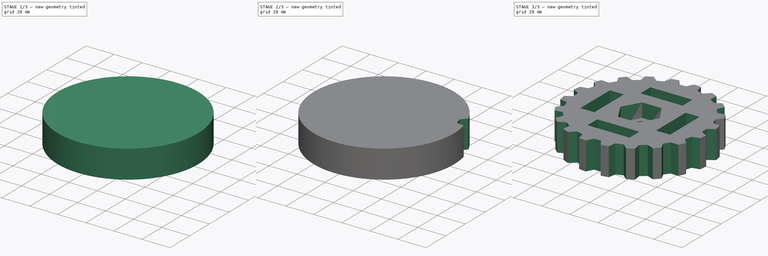
[diagram: build sequence overview — one tinted view per stage of 3, left to right]
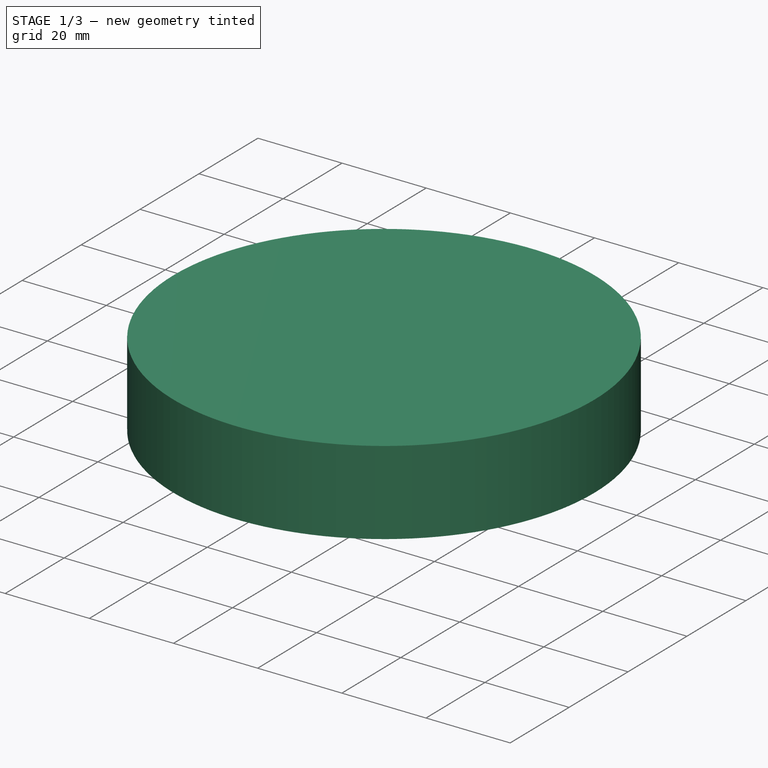
[diagram: stage 1 of 3 — iso view after this stage's code; geometry added in this stage tinted green]
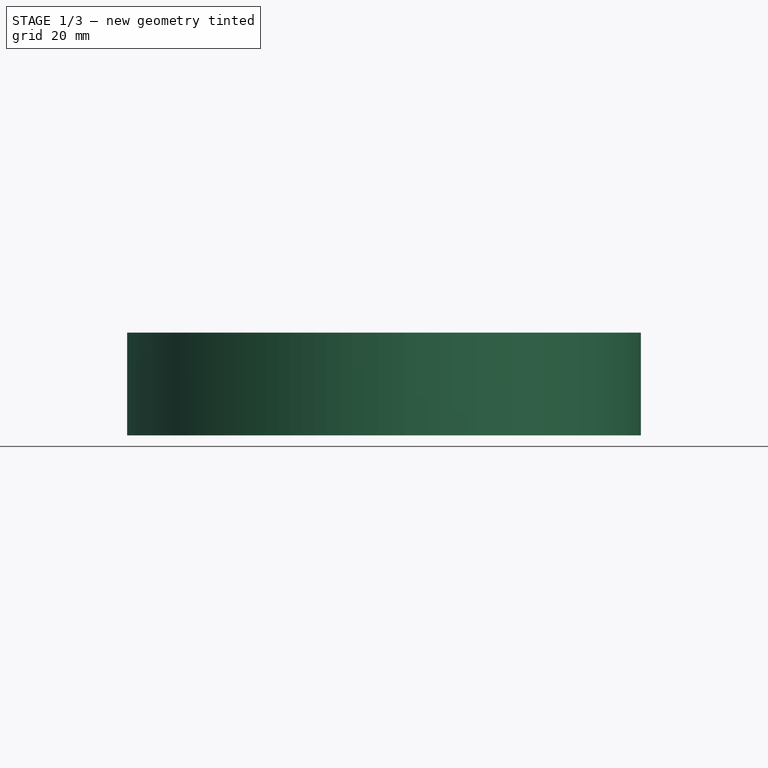
[diagram: stage 1 of 3 — front view after this stage's code; geometry added in this stage tinted green]
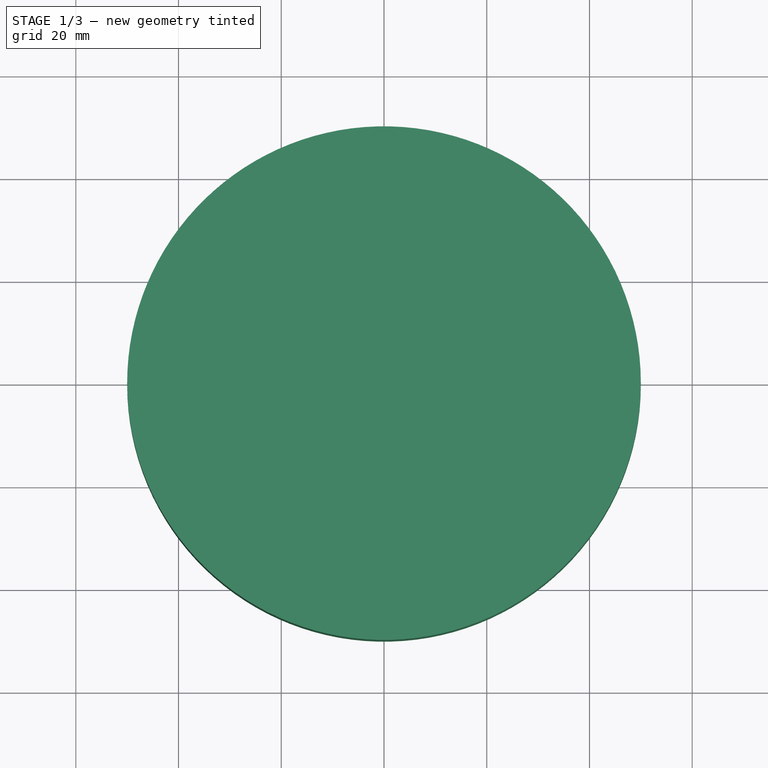
[diagram: stage 1 of 3 — top view after this stage's code; geometry added in this stage tinted green]
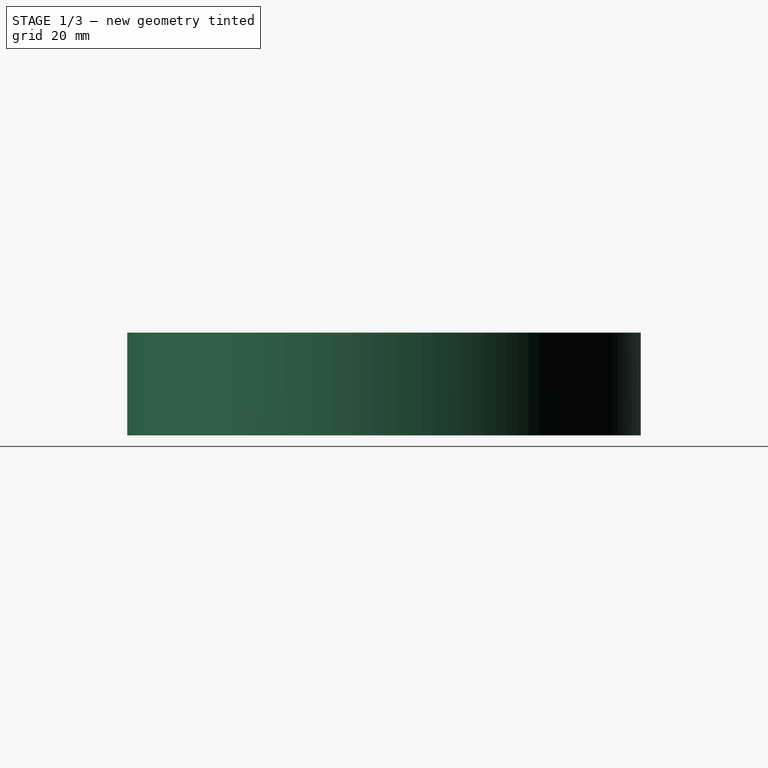
[diagram: stage 1 of 3 — right view after this stage's code; geometry added in this stage tinted green]
FCSTD DOCUMENT  (FreeCAD 0.15R4671 (Git))
Label: ServoGearBox
License: All rights reserved
LicenseURL: http://en.wikipedia.org/wiki/All_rights_reserved
objects: Sketcher::SketchObject×4, PartDesign::Pad×2, PartDesign::Pocket×2, PartDesign::PolarPattern×1
note: 13 computed .brp shape members not serialized (recipe doc carries the construction recipe); baked Part::Feature solids carry a one-line shape summary decoded from their .brp

FEATURE [Sketcher::SketchObject] Sketch  label="BaseSketch"
  sketch-geometry (1):
    g0: Circle CenterX=0 CenterY=0 CenterZ=0 NormalX=0 NormalY=0 NormalZ=1 Radius=50
  constraints (1):
    c: Radius(g0) = 50
FEATURE [PartDesign::Pad] Pad  label="Base"
  Length = 20
  Length2 = 100
  Sketch = -> Sketch
  Type = 0
FEATURE [Sketcher::SketchObject] Sketch004  label="NutBreakSketch"
  sketch-geometry (12):
    g0: LineSegment StartX=-5 StartY=8.66025 StartZ=0 EndX=5 EndY=8.66025 EndZ=0
    g1: LineSegment StartX=5 StartY=8.66025 StartZ=0 EndX=10 EndY=0 EndZ=0
    g2: LineSegment StartX=10 StartY=0 StartZ=0 EndX=5 EndY=-8.66025 EndZ=0
    g3: LineSegment StartX=5 StartY=-8.66025 StartZ=0 EndX=-5 EndY=-8.66025 EndZ=0
    g4: LineSegment StartX=-5 StartY=-8.66025 StartZ=0 EndX=-10 EndY=0 EndZ=0
    g5: LineSegment StartX=-10 StartY=0 StartZ=0 EndX=-5 EndY=8.66025 EndZ=0
    g6: LineSegment StartX=-7 StartY=12.1244 StartZ=0 EndX=7 EndY=12.1244 EndZ=0
    g7: LineSegment StartX=7 StartY=12.1244 StartZ=0 EndX=14 EndY=0 EndZ=0
    g8: LineSegment StartX=14 StartY=0 StartZ=0 EndX=7 EndY=-12.1244 EndZ=0
    g9: LineSegment StartX=7 StartY=-12.1244 StartZ=0 EndX=-7 EndY=-12.1244 EndZ=0
    g10: LineSegment StartX=-7 StartY=-12.1244 StartZ=0 EndX=-14 EndY=0 EndZ=0
    g11: LineSegment StartX=-14 StartY=0 StartZ=0 EndX=-7 EndY=12.1244 EndZ=0
  constraints (35):
    c: Coincident(g0,g1)
    c: Coincident(g1,g2)
    c: Coincident(g2,g3)
    c: Coincident(g3,g4)
    c: Coincident(g4,g5)
    c: Coincident(g5,g0)
    c: PointOnObject(g1,g-1)
    c: PointOnObject(g4,g-1)
    c: Symmetric(g4,g1,g-1)
    c: Equal(g4,g3)
    c: Equal(g3,g2)
    c: Equal(g2,g1)
    c: Equal(g1,g0)
    c: Equal(g0,g5)
    c: Angle(g5,g0) = 2.0944
    c: Parallel(g5,g2)
    c: Parallel(g3,g-1)
    c: DistanceX(g0) = 10
    c: Coincident(g6,g7)
    c: Coincident(g7,g8)
    c: Coincident(g8,g9)
    c: Horizontal(g9)
    c: Coincident(g9,g10)
    c: Coincident(g10,g11)
    c: Coincident(g11,g6)
    c: Horizontal(g6)
    c: Symmetric(g10,g7,g-1)
    c: PointOnObject(g7,g-1)
    c: Equal(g6,g7)
    c: Equal(g7,g8)
    c: Equal(g8,g9)
    c: Equal(g9,g10)
    c: Equal(g10,g11)
    c: Angle(g6,g7) = 2.0944
    c: DistanceX(g6) = 14
FEATURE [PartDesign::Pad] Pad001  label="NutBreak"
  Length = 10
  Length2 = 100
  Sketch = -> Sketch004
  Type = 0
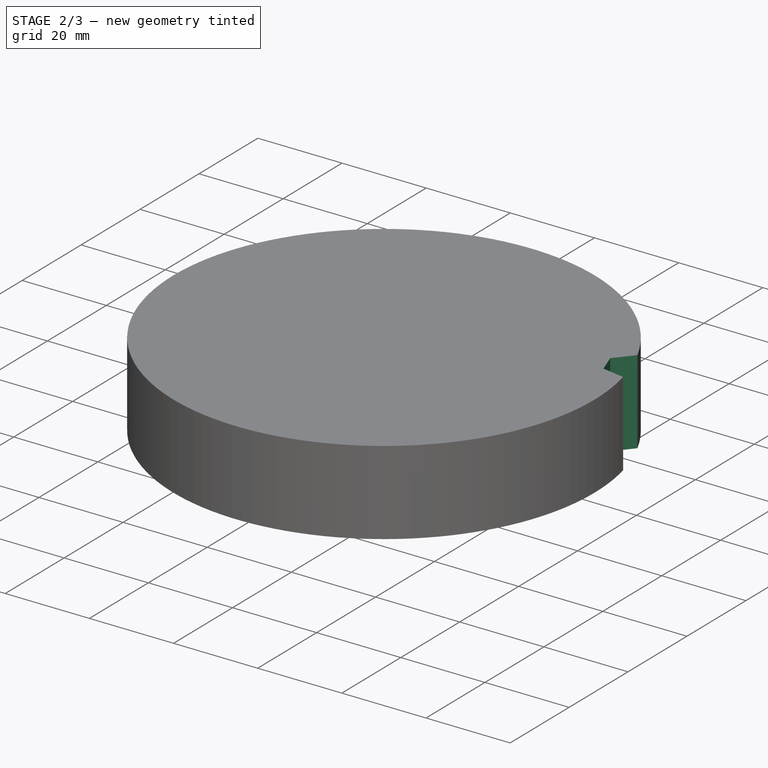
[diagram: stage 2 of 3 — iso view after this stage's code; geometry added in this stage tinted green]
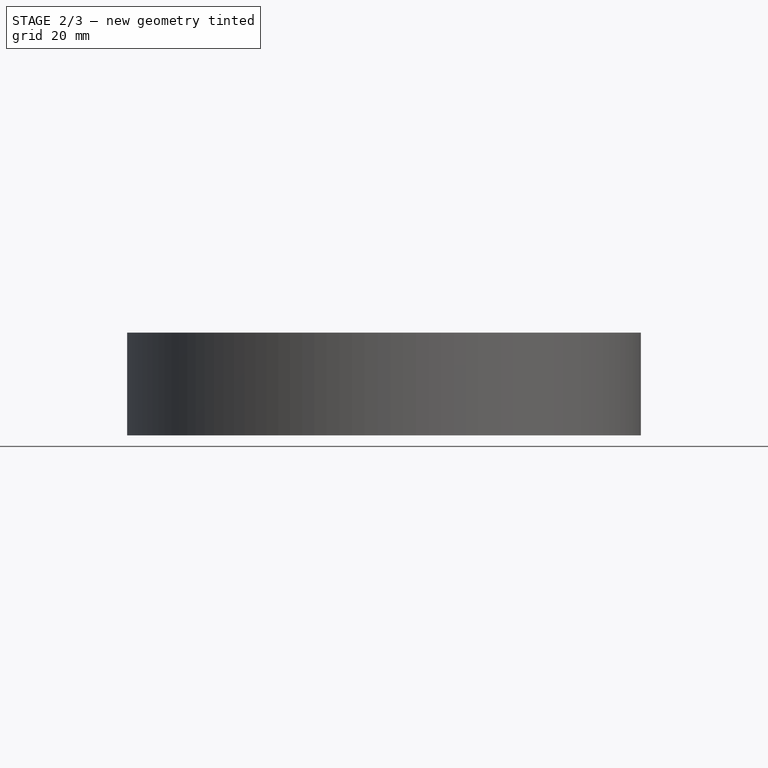
[diagram: stage 2 of 3 — front view after this stage's code; geometry added in this stage tinted green]
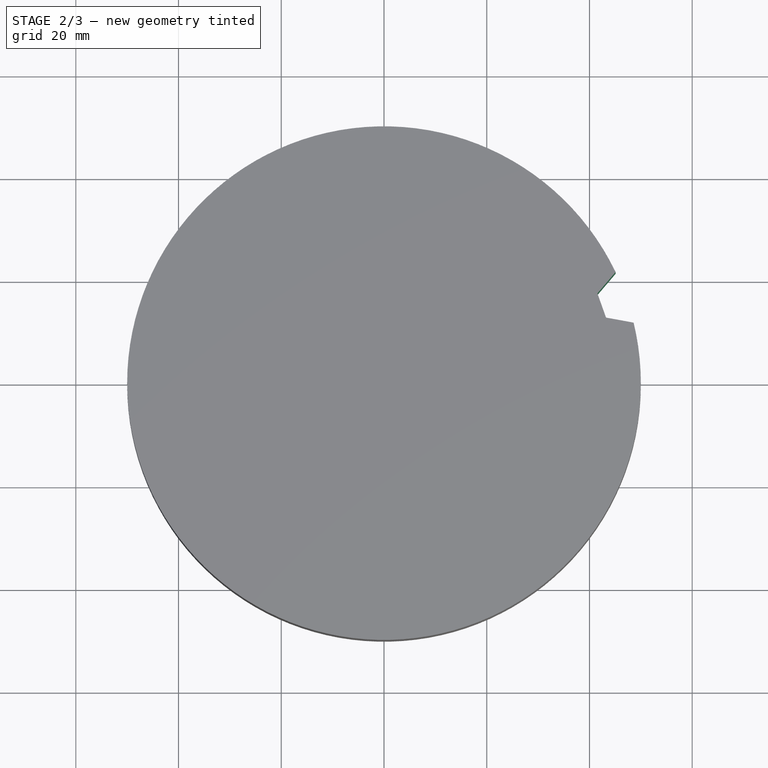
[diagram: stage 2 of 3 — top view after this stage's code; geometry added in this stage tinted green]
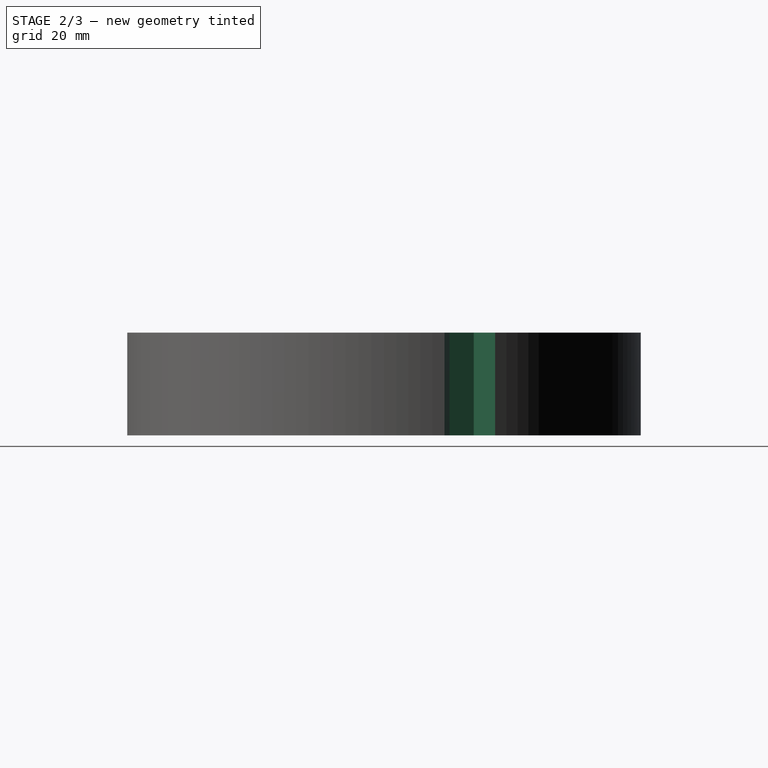
[diagram: stage 2 of 3 — right view after this stage's code; geometry added in this stage tinted green]
FEATURE [Sketcher::SketchObject] Sketch002  label="ToothSketch"
  Placement = pos=(0,0,20) rot=(0,0,1;0rad)
  Support = -> Pad [Face3]
  sketch-geometry (5):
    g0: ArcOfCircle CenterX=0 CenterY=0 CenterZ=0 NormalX=0 NormalY=0 NormalZ=1 Radius=50 StartAngle=0.237774 EndAngle=0.447297
    g1: LineSegment StartX=41.5461 StartY=17.4692 StartZ=0 EndX=43.2255 EndY=12.7597 EndZ=0
    g2: LineSegment StartX=45.081 StartY=21.6265 StartZ=0 EndX=41.5461 EndY=17.4692 EndZ=0
    g3: LineSegment StartX=48.5932 StartY=11.777 StartZ=0 EndX=43.2255 EndY=12.7597 EndZ=0
    g4: LineSegment [constr] StartX=0 StartY=0 StartZ=0 EndX=47.0953 EndY=16.7938 EndZ=0
  constraints (13):
    c: Coincident(g0,g-1)
    c: Coincident(g2,g0)
    c: Coincident(g2,g1)
    c: Coincident(g3,g0)
    c: Coincident(g3,g1)
    c: Angle(g3,g2) = 1.0472
    c: Coincident(g4,g-1)
    c: PointOnObject(g4,g0)
    c: Radius(g0) = 50
    c: Symmetric(g1,g1,g4)
    c: Distance(g1,g1) = 5
    c: Symmetric(g0,g0,g4)
    c: Distance(g4,g1) = 5
FEATURE [PartDesign::Pocket] Pocket  label="ToothPad"
  Length = 20
  Sketch = -> Sketch002
  Type = 0
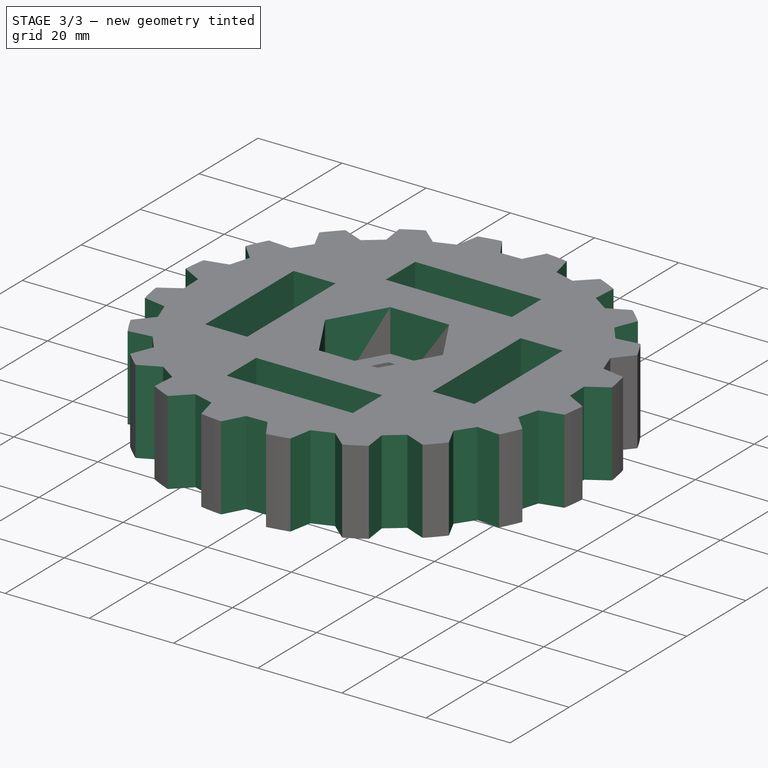
[diagram: stage 3 of 3 — iso view after this stage's code; geometry added in this stage tinted green]
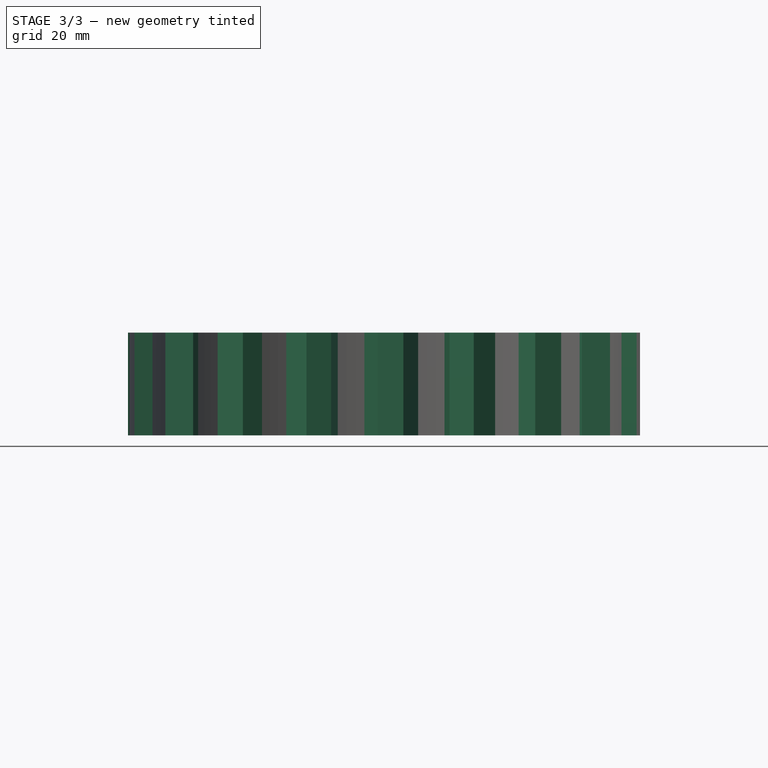
[diagram: stage 3 of 3 — front view after this stage's code; geometry added in this stage tinted green]
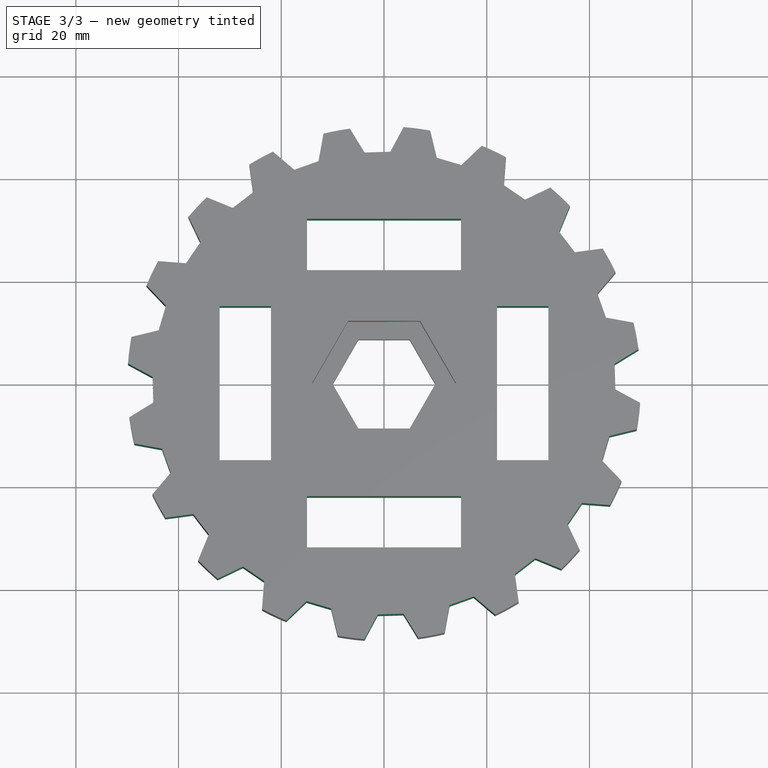
[diagram: stage 3 of 3 — top view after this stage's code; geometry added in this stage tinted green]
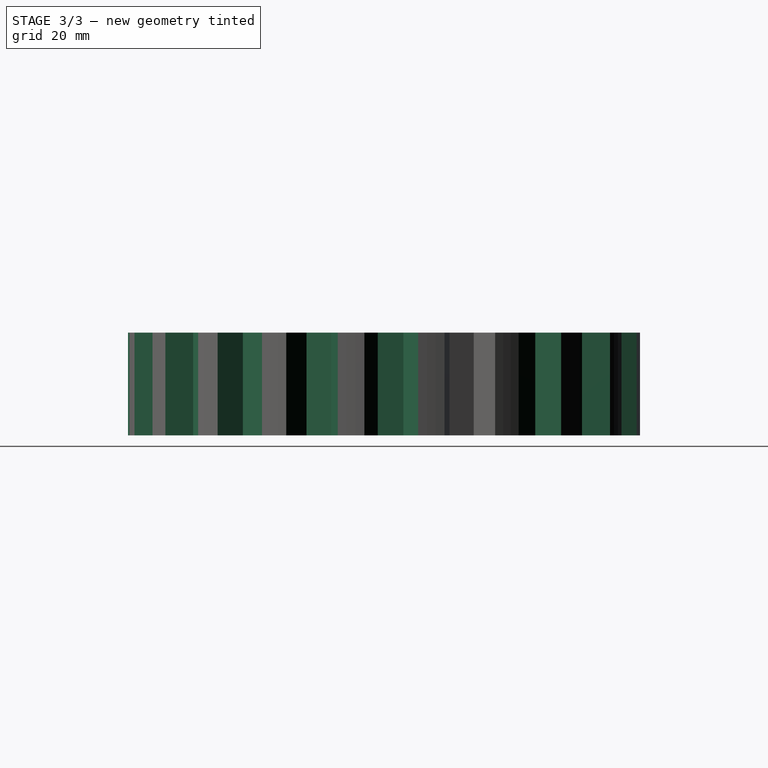
[diagram: stage 3 of 3 — right view after this stage's code; geometry added in this stage tinted green]
FEATURE [PartDesign::PolarPattern] PolarPattern  label="Teeth"
  Angle = 360
  Axis = -> Sketch002 [N_Axis]
  Occurrences = 20
  Originals = -> [Pocket]
FEATURE [Sketcher::SketchObject] Sketch003  label="NutSketch"
  Placement = pos=(0,0,20) rot=(0,0,1;0rad)
  Support = -> PolarPattern [Face4]
  sketch-geometry (22):
    g0: LineSegment StartX=-7 StartY=12.1244 StartZ=0 EndX=7 EndY=12.1244 EndZ=0
    g1: LineSegment StartX=7 StartY=12.1244 StartZ=0 EndX=14 EndY=0 EndZ=0
    g2: LineSegment StartX=14 StartY=0 StartZ=0 EndX=7 EndY=-12.1244 EndZ=0
    g3: LineSegment StartX=7 StartY=-12.1244 StartZ=0 EndX=-7 EndY=-12.1244 EndZ=0
    g4: LineSegment StartX=-7 StartY=-12.1244 StartZ=0 EndX=-14 EndY=0 EndZ=0
    g5: LineSegment StartX=-14 StartY=0 StartZ=0 EndX=-7 EndY=12.1244 EndZ=0
    g6: LineSegment StartX=-15 StartY=-22 StartZ=0 EndX=15 EndY=-22 EndZ=0
    g7: LineSegment StartX=15 StartY=-22 StartZ=0 EndX=15 EndY=-32 EndZ=0
    g8: LineSegment StartX=15 StartY=-32 StartZ=0 EndX=-15 EndY=-32 EndZ=0
    g9: LineSegment StartX=-15 StartY=-32 StartZ=0 EndX=-15 EndY=-22 EndZ=0
    g10: LineSegment StartX=-15 StartY=32 StartZ=0 EndX=15 EndY=32 EndZ=0
    g11: LineSegment StartX=15 StartY=32 StartZ=0 EndX=15 EndY=22 EndZ=0
    g12: LineSegment StartX=15 StartY=22 StartZ=0 EndX=-15 EndY=22 EndZ=0
    g13: LineSegment StartX=-15 StartY=22 StartZ=0 EndX=-15 EndY=32 EndZ=0
    g14: LineSegment StartX=-32 StartY=15 StartZ=0 EndX=-22 EndY=15 EndZ=0
    g15: LineSegment StartX=-22 StartY=15 StartZ=0 EndX=-22 EndY=-15 EndZ=0
    g16: LineSegment StartX=-22 StartY=-15 StartZ=0 EndX=-32 EndY=-15 EndZ=0
    g17: LineSegment StartX=-32 StartY=-15 StartZ=0 EndX=-32 EndY=15 EndZ=0
    g18: LineSegment StartX=22 StartY=15 StartZ=0 EndX=32 EndY=15 EndZ=0
    g19: LineSegment StartX=32 StartY=15 StartZ=0 EndX=32 EndY=-15 EndZ=0
    g20: LineSegment StartX=32 StartY=-15 StartZ=0 EndX=22 EndY=-15 EndZ=0
    g21: LineSegment StartX=22 StartY=-15 StartZ=0 EndX=22 EndY=15 EndZ=0
  constraints (66):
    c: Horizontal(g0)
    c: Coincident(g0,g1)
    c: PointOnObject(g1,g-1)
    c: Coincident(g1,g2)
    c: Coincident(g2,g3)
    c: Horizontal(g3)
    c: Coincident(g3,g4)
    c: PointOnObject(g4,g-1)
    c: Coincident(g4,g5)
    c: Coincident(g5,g0)
    c: Equal(g2,g1)
    c: Equal(g1,g0)
    c: Equal(g0,g5)
    c: Equal(g5,g4)
    c: Equal(g4,g3)
    c: Symmetric(g1,g4,g-1)
    c: Angle(g2,g3) = 2.0944
    c: DistanceX(g0) = 14
    c: Coincident(g6,g7)
    c: Coincident(g7,g8)
    c: Coincident(g8,g9)
    c: Coincident(g9,g6)
    c: Coincident(g10,g11)
    c: Coincident(g11,g12)
    c: Coincident(g12,g13)
    c: Coincident(g10,g13)
    c: Parallel(g11,g13)
    c: Parallel(g7,g9)
    c: Equal(g13,g11)
    c: Equal(g11,g9)
    c: Equal(g9,g7)
    c: Equal(g12,g10)
    c: Distance(g7) = 10
    c: Distance(g8) = 30
    c: Angle(g11,g12) = 1.5708
    c: Angle(g8,g9) = 1.5708
    c: Parallel(g6,g3)
    c: Parallel(g12,g0)
    c: DistanceX(g10) = 30
    c: Symmetric(g11,g12,g-2)
    c: Symmetric(g6,g6,g-2)
    c: Symmetric(g6,g11,g-1)
    c: DistanceY(g-1,g6) = -22
    c: Coincident(g14,g15)
    c: Coincident(g15,g16)
    c: Coincident(g16,g17)
    c: Coincident(g17,g14)
    c: Horizontal(g14)
    c: Horizontal(g16)
    c: Vertical(g15)
    c: Vertical(g17)
    c: Coincident(g18,g19)
    c: Coincident(g19,g20)
    c: Coincident(g20,g21)
    c: Coincident(g21,g18)
    c: Horizontal(g18)
    c: Horizontal(g20)
    c: Vertical(g19)
    c: Vertical(g21)
    c: Equal(g8,g21)
    c: Equal(g21,g15)
    c: Equal(g14,g18)
    c: Equal(g18,g7)
    c: Symmetric(g20,g15,g-2)
    c: Symmetric(g20,g18,g-1)
    c: DistanceX(g-1,g20) = 22
FEATURE [PartDesign::Pocket] Pocket001  label="NutPad"
  Length = 20
  Sketch = -> Sketch003
  Type = 0
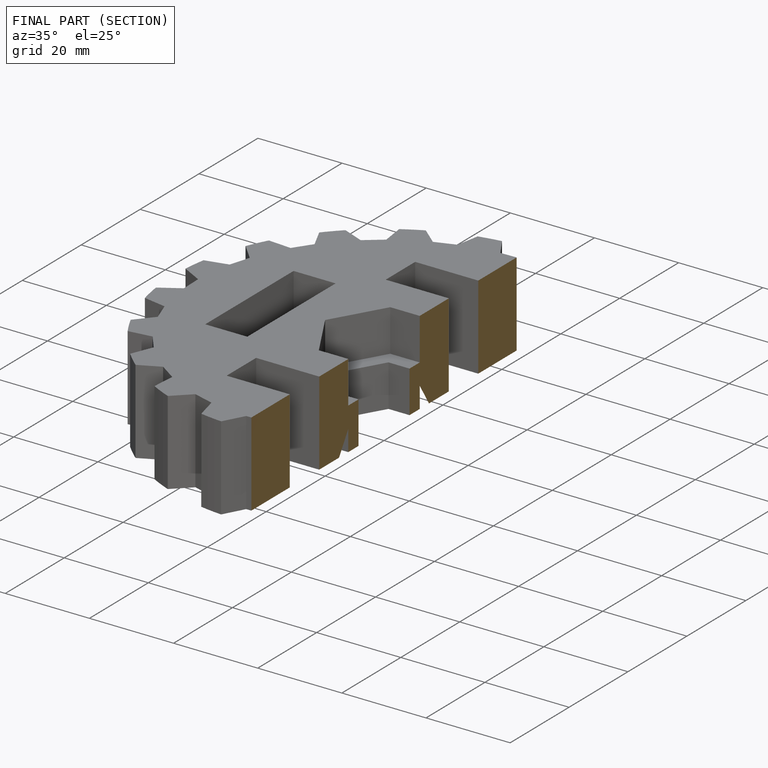
[diagram: finished part — half-section view (interior)]
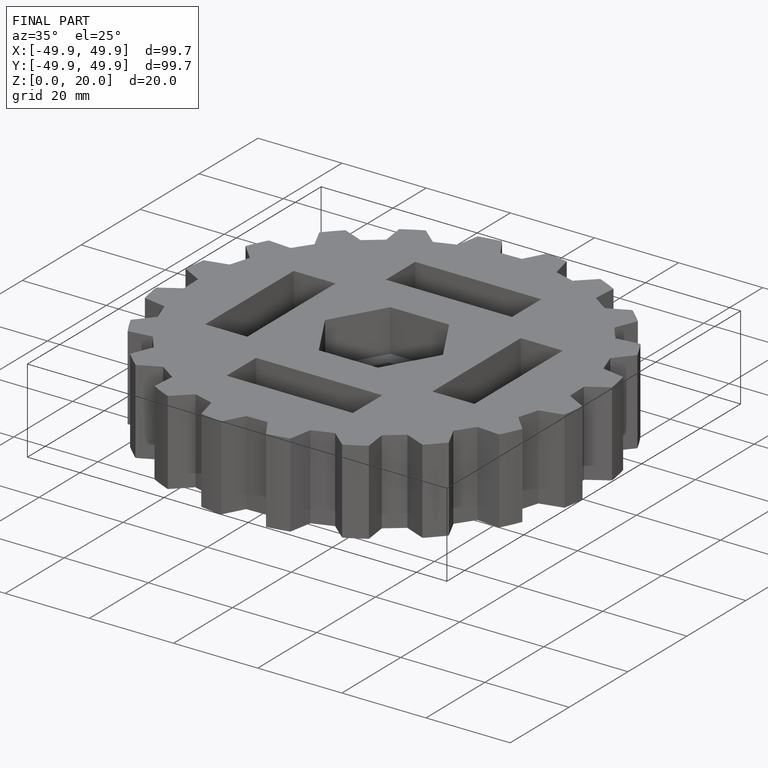
[diagram: finished part — iso view with bounding-box wireframe]
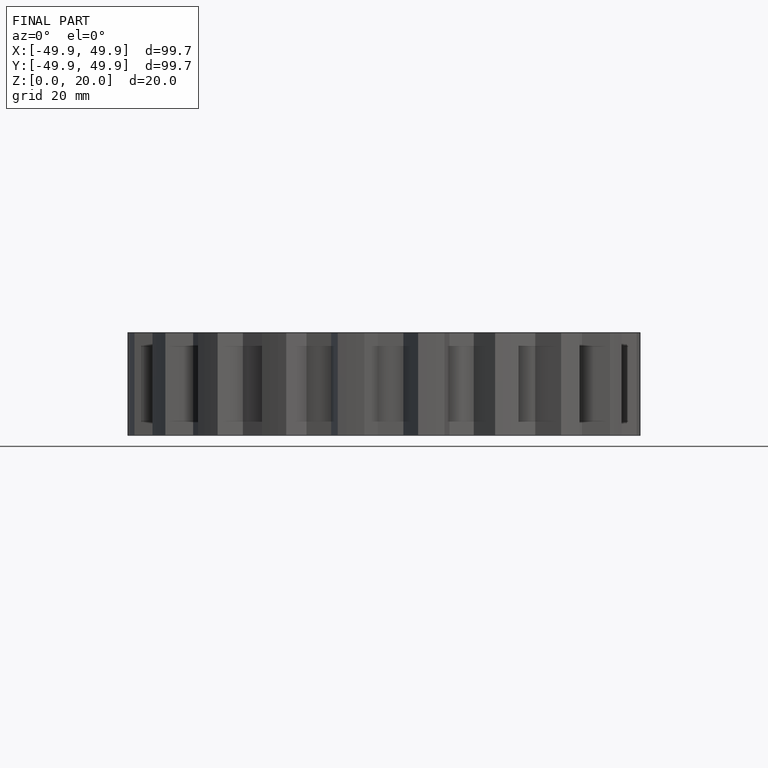
[diagram: finished part — front view with bounding-box wireframe]
